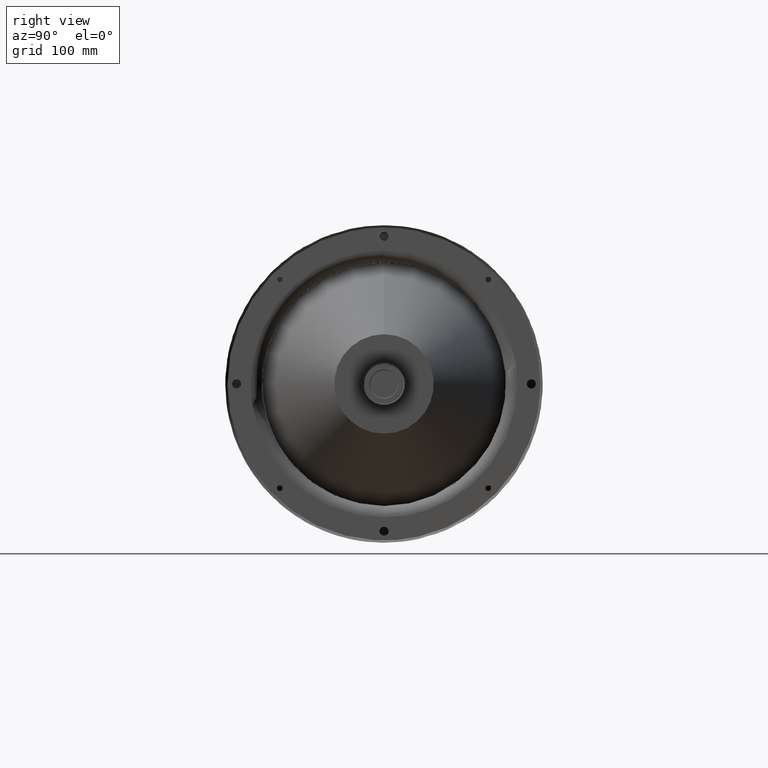
[diagram: clean part render]
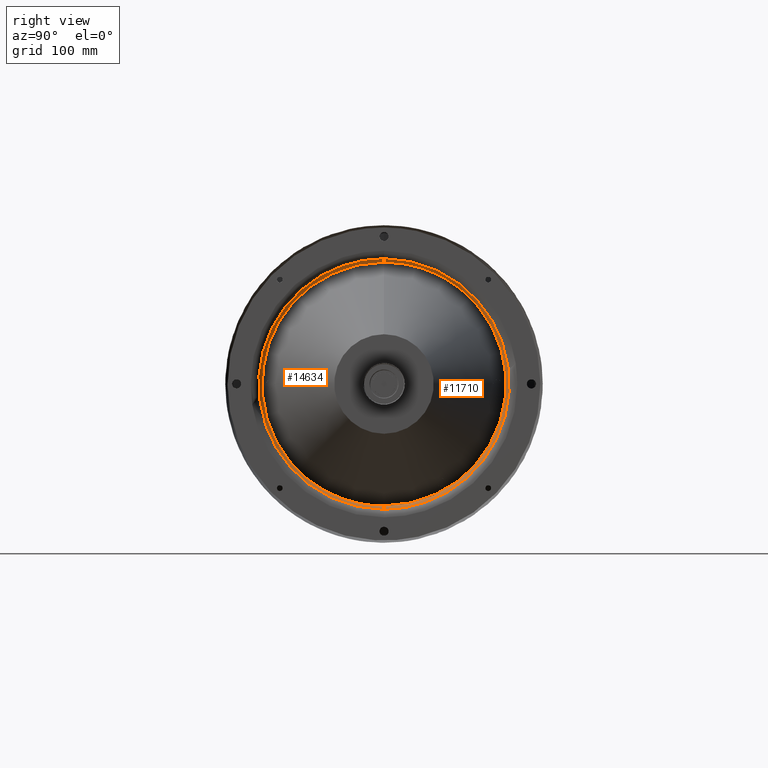
[diagram: same view with one multi-face feature highlighted, each face labeled with its STEP entity id]
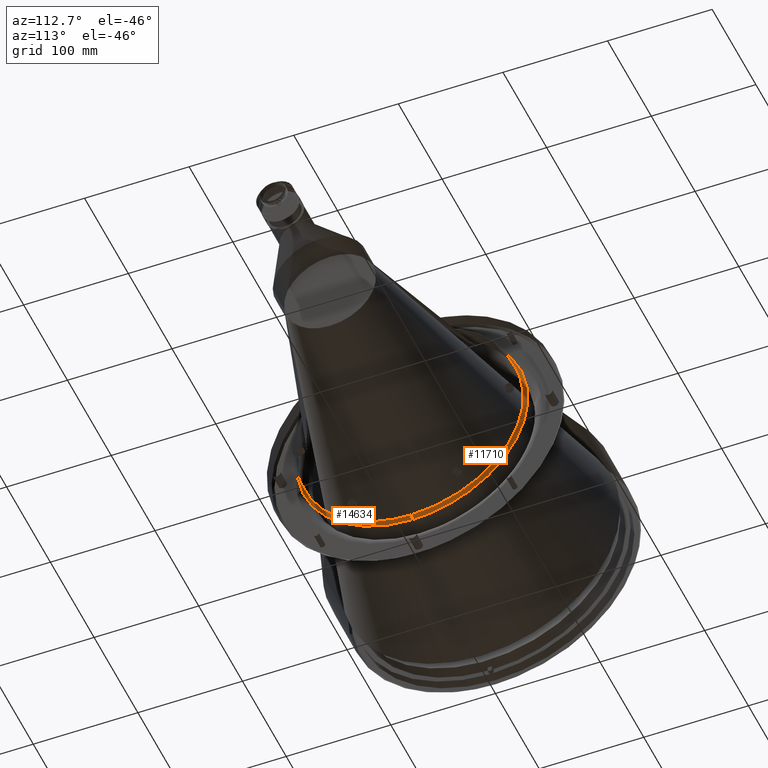
[diagram: same view with one multi-face feature highlighted, each face labeled with its STEP entity id]
A machine part, right view. The highlighted faces form ONE feature: a constant-radius fillet chain: 2 tangent blend faces with common blend radius 3 mm. The faces share edges in the B-rep.
A second angle (auxiliary view) of the same feature is appended — it is thin or edge-on in the first view.
Their STEP definitions:
[1] entity #11710 (Torus):
#790 = CARTESIAN_POINT ( 'NONE',  ( 193.0000000002060005, -1.964130387255570030E-09, 107.5000000000199947 ) ) ;
#1292 = CARTESIAN_POINT ( 'NONE',  ( 193.0000000000408988, 104.0617897341287090, -27.87287611392599729 ) ) ;
#1416 = DIRECTION ( 'NONE',  ( 1.000000000000000000, -1.364223439299359951E-12, -2.161051562863539981E-13 ) ) ;
#2033 = TOROIDAL_SURFACE ( 'NONE', #37690, 110.4999999998850058, 2.999999999825670116 ) ;
#2180 = FACE_OUTER_BOUND ( 'NONE', #15940, .T. ) ;
#2299 = CARTESIAN_POINT ( 'NONE',  ( 190.0000000002042384, 99.32104212800834375, -48.96820830360432808 ) ) ;
#2542 = DIRECTION ( 'NONE',  ( 1.000000000000000000, -1.364223439299361970E-12, 0.000000000000000000 ) ) ;
#2549 = CARTESIAN_POINT ( 'NONE',  ( 190.0000000000753175, 14.46423734553270357, -109.7877072893656702 ) ) ;
#2756 = ORIENTED_EDGE ( 'NONE', *, *, #13917, .F. ) ;
#3381 = CARTESIAN_POINT ( 'NONE',  ( 192.9999999999011209, 14.07154311893987675, -106.8070455530409788 ) ) ;
#3394 = VERTEX_POINT ( 'NONE', #27545 ) ;
#4444 = VERTEX_POINT ( 'NONE', #33851 ) ;
#4681 = CARTESIAN_POINT ( 'NONE',  ( 193.0000000000516707, 102.0095562431598353, 34.63818327513412498 ) ) ;
#4933 = CARTESIAN_POINT ( 'NONE',  ( 193.0000000000001137, 80.98908226821060907, -71.03887568706910827 ) ) ;
#5190 = CARTESIAN_POINT ( 'NONE',  ( 192.9999999999473062, 14.07154311684571368, 106.8070455532581917 ) ) ;
#5446 = CARTESIAN_POINT ( 'NONE',  ( 192.9999999999759837, 65.57390262847629003, -85.47406974982817474 ) ) ;
#5587 = EDGE_CURVE ( 'NONE', #4444, #3394, #28257, .T. ) ;
#6172 = VERTEX_POINT ( 'NONE', #41250 ) ;
#6209 = CARTESIAN_POINT ( 'NONE',  ( 190.0000000002260094, 109.7877072894778792, -14.46423734522748461 ) ) ;
#6459 = CARTESIAN_POINT ( 'NONE',  ( 190.0000000001846558, 87.85939262696450669, -67.40387200360369491 ) ) ;
#6711 = CARTESIAN_POINT ( 'NONE',  ( 190.0000000001505782, 35.60483024903621185, 104.8563345572075889 ) ) ;
#7288 = CARTESIAN_POINT ( 'NONE',  ( 192.9999999998914575, 7.035858547257477724, -107.5000000000887042 ) ) ;
#9851 = CARTESIAN_POINT ( 'NONE',  ( 190.0000000002190177, 106.9658396799592595, -28.65072382018607300 ) ) ;
#10349 = CARTESIAN_POINT ( 'NONE',  ( 190.0000000001227818, 14.46423734531042093, 109.7877072893375470 ) ) ;
#11710 = ADVANCED_FACE ( 'NONE', ( #2180 ), #2033, .T. ) ;
#12689 = CARTESIAN_POINT ( 'NONE',  ( 190.0000000000516138, -2.882480042511756240E-13, 110.5000000000000000 ) ) ;
#12951 = CARTESIAN_POINT ( 'NONE',  ( 192.9999999999654392, 27.87287611298400236, 104.0617897342650338 ) ) ;
#13917 = EDGE_CURVE ( 'NONE', #4444, #27540, #32089, .T. ) ;
#13967 = CARTESIAN_POINT ( 'NONE',  ( 190.0000000002221441, 95.89539169218123504, 55.37714949376840678 ) ) ;
#14212 = DIRECTION ( 'NONE',  ( -1.364223439299359951E-12, -1.000000000000000000, 2.948157195592955509E-25 ) ) ;
#14218 = CARTESIAN_POINT ( 'NONE',  ( 190.0000000002137881, 87.85939262682802564, 67.40387200372416032 ) ) ;
#15940 = EDGE_LOOP ( 'NONE', ( #40065, #50647, #34925, #2756 ) ) ;
#16329 = CARTESIAN_POINT ( 'NONE',  ( 192.9999999999491536, 47.63875468497065668, -96.62454324647218584 ) ) ;
#16588 = CARTESIAN_POINT ( 'NONE',  ( 192.9999999999583622, 53.87369747167641520, -93.29189689493730953 ) ) ;
#17615 = CARTESIAN_POINT ( 'NONE',  ( 190.0000000002146976, 104.8563345573479211, -35.60483024895327020 ) ) ;
#18111 = CARTESIAN_POINT ( 'NONE',  ( 190.0000000002285105, 110.5000000001476650, -7.232208087870259483 ) ) ;
#18362 = CARTESIAN_POINT ( 'NONE',  ( 190.0000000001130616, 7.232208087953195808, 110.5000000000072902 ) ) ;
#18615 = CARTESIAN_POINT ( 'NONE',  ( 190.0000000001341505, 55.37714949390879582, -95.89539169209825786 ) ) ;
#20488 = CARTESIAN_POINT ( 'NONE',  ( 193.0000000000206057, 93.29189689554362985, -53.87369747068364489 ) ) ;
#20998 = CARTESIAN_POINT ( 'NONE',  ( 192.9999999999908482, 47.63875468307613659, 96.62454324734748923 ) ) ;
#21259 = CARTESIAN_POINT ( 'NONE',  ( 192.9999999999742784, 34.63818327227091487, 102.0095562440416330 ) ) ;
#21513 = CARTESIAN_POINT ( 'NONE',  ( 190.0000000001902549, 67.40387200368664367, 87.85939262682414608 ) ) ;
#22017 = CARTESIAN_POINT ( 'NONE',  ( 190.0000000001982130, 95.89539169229333027, -55.37714949363171968 ) ) ;
#22264 = CARTESIAN_POINT ( 'NONE',  ( 190.0000000001246860, 48.96820830388833201, -99.32104212782628849 ) ) ;
#22513 = CARTESIAN_POINT ( 'NONE',  ( 190.0000000001675744, 48.96820830368723421, 99.32104212786798314 ) ) ;
#22986 = CARTESIAN_POINT ( 'NONE',  ( 190.0000000000277396, 2.252650009324170087E-10, -110.5000000000287201 ) ) ;
#23340 = CARTESIAN_POINT ( 'NONE',  ( 192.9999999999205329, 27.87287611502434359, -104.0617897337772746 ) ) ;
#24118 = CARTESIAN_POINT ( 'NONE',  ( 193.0000000000476916, 106.8070455532571259, -14.07154311781462930 ) ) ;
#24890 = CARTESIAN_POINT ( 'NONE',  ( 193.0000000000308091, 80.98908226681778899, 71.03887568859835255 ) ) ;
#25141 = CARTESIAN_POINT ( 'NONE',  ( 193.0000000000538023, 106.8070455529812364, 14.07154311985005535 ) ) ;
#25660 = CARTESIAN_POINT ( 'NONE',  ( 190.0000000001770957, 83.24924270326341968, -73.02135593913419598 ) ) ;
#25919 = CARTESIAN_POINT ( 'NONE',  ( 190.0000000001415117, 28.65072382026899689, 106.9658396798189273 ) ) ;
#26173 = CARTESIAN_POINT ( 'NONE',  ( 190.0000000001052172, 35.60483024924849360, -104.8563345571929375 ) ) ;
#26427 = CARTESIAN_POINT ( 'NONE',  ( 190.0000000002316654, 110.5000000001330136, 7.232208088036498950 ) ) ;
#27043 = AXIS2_PLACEMENT_3D ( 'NONE', #44114, #31907, #47478 ) ;
#27540 = VERTEX_POINT ( 'NONE', #22986 ) ;
#27545 = CARTESIAN_POINT ( 'NONE',  ( 193.0000000002060005, -1.964130387255570030E-09, 107.5000000000199947 ) ) ;
#28074 = B_SPLINE_CURVE_WITH_KNOTS ( 'NONE', 3,
 ( #12689, #18362, #10349, #25919, #6711, #22513, #30073, #21513, #33737, #50068, #14218, #13967, #45918, #29825, #38374, #42016, #26427, #18111, #6209, #9851, #17615, #2299, #22017, #6459, #25660, #38122, #34482, #18615, #22264, #26173, #42274, #2549, #33987, #45673 ),
 .UNSPECIFIED., .F., .F.,
 ( 4, 2, 2, 2, 2, 2, 2, 2, 2, 2, 2, 2, 2, 2, 2, 2, 4 ),
 ( 0.000000000000000000, 0.03125000000000000000, 0.06250000000000000000, 0.09375000000000000000, 0.1250000000000000000, 0.1562500000000000000, 0.1875000000000000000, 0.2187500000000000000, 0.2500000000000000000, 0.2812500000000000000, 0.3125000000000000000, 0.3437500000000000000, 0.3750000000000000000, 0.4062500000000000000, 0.4375000000000000000, 0.4687500000000000000, 0.5000000000000000000 ),
 .UNSPECIFIED. ) ;
#28257 = B_SPLINE_CURVE_WITH_KNOTS ( 'NONE', 3,
 ( #42853, #7288, #3381, #23340, #39208, #16329, #16588, #5446, #41001, #4933, #44144, #20488, #36347, #44911, #1292, #24118, #39977, #48018, #25141, #36599, #4681, #48274, #29056, #32194, #24890, #48532, #28552, #40740, #20998, #21259, #12951, #5190, #37112, #790 ),
 .UNSPECIFIED., .F., .F.,
 ( 4, 2, 2, 2, 2, 2, 2, 2, 2, 2, 2, 2, 2, 2, 2, 2, 4 ),
 ( 0.000000000000000000, 0.06249999999999994449, 0.1249999999999998890, 0.1874999999999998335, 0.2499999999999998335, 0.3124999999999998335, 0.3749999999999998335, 0.4374999999999998335, 0.4999999999999997780, 0.5624999999999997780, 0.6249999999999998890, 0.6874999999999998890, 0.7500000000000000000, 0.8125000000000000000, 0.8750000000000000000, 0.9374999999999998890, 1.000000000000000000 ),
 .UNSPECIFIED. ) ;
#28552 = CARTESIAN_POINT ( 'NONE',  ( 193.0000000000129319, 65.57390262680041815, 85.47406975105515414 ) ) ;
#29056 = CARTESIAN_POINT ( 'NONE',  ( 193.0000000000439400, 93.29189689448735123, 53.87369747245407581 ) ) ;
#29825 = CARTESIAN_POINT ( 'NONE',  ( 190.0000000002301022, 104.8563345572758720, 35.60483024910809746 ) ) ;
#30073 = CARTESIAN_POINT ( 'NONE',  ( 190.0000000001755893, 55.37714949371464002, 95.89539169215296965 ) ) ;
#31907 = DIRECTION ( 'NONE',  ( 1.364223439299359951E-12, 1.000000000000000000, -1.224646802095510313E-16 ) ) ;
#32089 = CIRCLE ( 'NONE', #42869, 2.999999999825670116 ) ;
#32194 = CARTESIAN_POINT ( 'NONE',  ( 193.0000000000357545, 85.47406974926353485, 65.57390262917732571 ) ) ;
#32860 = EDGE_CURVE ( 'NONE', #6172, #27540, #28074, .T. ) ;
#33088 = DIRECTION ( 'NONE',  ( -2.161051562863539981E-13, -9.607986225502637132E-29, -1.000000000000000000 ) ) ;
#33737 = CARTESIAN_POINT ( 'NONE',  ( 190.0000000001969340, 73.02135593921715895, 83.24924270312304486 ) ) ;
#33851 = CARTESIAN_POINT ( 'NONE',  ( 193.0000000003415153, 2.702453454497094965E-09, -107.5000000001133884 ) ) ;
#33987 = CARTESIAN_POINT ( 'NONE',  ( 190.0000000000653984, 7.232208088176899530, -110.5000000000501217 ) ) ;
#34482 = CARTESIAN_POINT ( 'NONE',  ( 190.0000000001522835, 67.40387200386452093, -87.85939262674506267 ) ) ;
#34925 = ORIENTED_EDGE ( 'NONE', *, *, #32860, .T. ) ;
#36347 = CARTESIAN_POINT ( 'NONE',  ( 193.0000000000265175, 96.62454324701738528, -47.63875468394521562 ) ) ;
#36599 = CARTESIAN_POINT ( 'NONE',  ( 193.0000000000529781, 104.0617897335822164, 27.87287611590761927 ) ) ;
#37112 = CARTESIAN_POINT ( 'NONE',  ( 192.9999999999378986, 7.035858545149753951, 107.5000000001679439 ) ) ;
#37362 = CARTESIAN_POINT ( 'NONE',  ( 192.9999999998811404, 1.075406430572910080E-10, -110.4999999999143654 ) ) ;
#37690 = AXIS2_PLACEMENT_3D ( 'NONE', #41125, #1416, #33088 ) ;
#38122 = CARTESIAN_POINT ( 'NONE',  ( 190.0000000001609237, 73.02135593938568547, -83.24924270303259277 ) ) ;
#38374 = CARTESIAN_POINT ( 'NONE',  ( 190.0000000002314948, 106.9658396799012792, 28.65072382034520615 ) ) ;
#39208 = CARTESIAN_POINT ( 'NONE',  ( 192.9999999999302247, 34.63818327427099319, -102.0095562434212155 ) ) ;
#39977 = CARTESIAN_POINT ( 'NONE',  ( 193.0000000000501643, 107.5000000002358718, -7.035858546125418833 ) ) ;
#40065 = ORIENTED_EDGE ( 'NONE', *, *, #5587, .T. ) ;
#40652 = EDGE_CURVE ( 'NONE', #3394, #6172, #49443, .T. ) ;
#40740 = CARTESIAN_POINT ( 'NONE',  ( 192.9999999999986358, 53.87369746984726504, 93.29189689593491153 ) ) ;
#41001 = CARTESIAN_POINT ( 'NONE',  ( 192.9999999999843965, 71.03887568794128526, -80.98908226743603223 ) ) ;
#41125 = CARTESIAN_POINT ( 'NONE',  ( 192.9999999999049862, 1.075406430572910080E-10, -2.935804377379720360E-11 ) ) ;
#41250 = CARTESIAN_POINT ( 'NONE',  ( 190.0000000000516138, -2.882480042511756240E-13, 110.5000000000000000 ) ) ;
#42016 = CARTESIAN_POINT ( 'NONE',  ( 190.0000000002322338, 109.7877072894485906, 14.46423734539233230 ) ) ;
#42274 = CARTESIAN_POINT ( 'NONE',  ( 190.0000000000953548, 28.65072382048558453, -106.9658396798183588 ) ) ;
#42853 = CARTESIAN_POINT ( 'NONE',  ( 193.0000000003415153, 2.702453454497094965E-09, -107.5000000001133884 ) ) ;
#42869 = AXIS2_PLACEMENT_3D ( 'NONE', #37362, #14212, #2542 ) ;
#44114 = CARTESIAN_POINT ( 'NONE',  ( 192.9999999999288605, 1.075541754044215835E-10, 110.4999999998556603 ) ) ;
#44144 = CARTESIAN_POINT ( 'NONE',  ( 193.0000000000074181, 85.47406975054921929, -65.57390262756014465 ) ) ;
#44911 = CARTESIAN_POINT ( 'NONE',  ( 193.0000000000366640, 102.0095562438389436, -34.63818327319276591 ) ) ;
#45673 = CARTESIAN_POINT ( 'NONE',  ( 190.0000000000277396, 2.252650009324170087E-10, -110.5000000000287201 ) ) ;
#45918 = CARTESIAN_POINT ( 'NONE',  ( 190.0000000002254126, 99.32104212790923725, 48.96820830374793587 ) ) ;
#47478 = DIRECTION ( 'NONE',  ( -1.000000000000000000, 1.364223439299361970E-12, 0.000000000000000000 ) ) ;
#48018 = CARTESIAN_POINT ( 'NONE',  ( 193.0000000000531486, 107.5000000000979128, 7.035858548174445559 ) ) ;
#48274 = CARTESIAN_POINT ( 'NONE',  ( 193.0000000000470948, 96.62454324608332001, 47.63875468578098804 ) ) ;
#48532 = CARTESIAN_POINT ( 'NONE',  ( 193.0000000000194120, 71.03887568635337857, 80.98908226877014727 ) ) ;
#49443 = CIRCLE ( 'NONE', #27043, 2.999999999825670116 ) ;
#50068 = CARTESIAN_POINT ( 'NONE',  ( 190.0000000002086722, 83.24924270311558416, 73.02135593924531065 ) ) ;
#50647 = ORIENTED_EDGE ( 'NONE', *, *, #40652, .T. ) ;
[2] entity #14634 (Torus):
#71 = CARTESIAN_POINT ( 'NONE',  ( 192.9999999997905320, -71.03887568699406074, -80.98908226807060373 ) ) ;
#583 = CARTESIAN_POINT ( 'NONE',  ( 192.9999999997627924, -96.62454324613523227, -47.63875468528519974 ) ) ;
#2494 = CARTESIAN_POINT ( 'NONE',  ( 190.0000000000339639, -48.96820830366510791, 99.32104212776881980 ) ) ;
#2542 = DIRECTION ( 'NONE',  ( 1.000000000000000000, -1.364223439299361970E-12, 0.000000000000000000 ) ) ;
#3394 = VERTEX_POINT ( 'NONE', #27545 ) ;
#3691 = CARTESIAN_POINT ( 'NONE',  ( 192.9999999997834266, -96.62454324706946807, 47.63875468333152696 ) ) ;
#4444 = VERTEX_POINT ( 'NONE', #33851 ) ;
#4470 = CARTESIAN_POINT ( 'NONE',  ( 192.9999999998025260, -85.47406975086512659, 65.57390262679987813 ) ) ;
#5904 = CARTESIAN_POINT ( 'NONE',  ( 190.0000000000633804, -28.65072382026234976, 106.9658396797609186 ) ) ;
#6156 = CARTESIAN_POINT ( 'NONE',  ( 190.0000000000171383, -28.65072382004570883, -106.9658396798763675 ) ) ;
#6172 = VERTEX_POINT ( 'NONE', #41250 ) ;
#6904 = CARTESIAN_POINT ( 'NONE',  ( 190.0000000000245564, -55.37714949368555750, 95.89539169204081759 ) ) ;
#7205 = AXIS2_PLACEMENT_3D ( 'NONE', #39277, #35400, #51211 ) ;
#8072 = ORIENTED_EDGE ( 'NONE', *, *, #29746, .T. ) ;
#8369 = CARTESIAN_POINT ( 'NONE',  ( 192.9999999997583870, -102.0095562430808087, -34.63818327477422088 ) ) ;
#9794 = CARTESIAN_POINT ( 'NONE',  ( 189.9999999999263878, -109.7877072892253096, -14.46423734544980633 ) ) ;
#10293 = CARTESIAN_POINT ( 'NONE',  ( 189.9999999999604938, -95.89539169207010616, 55.37714949357423677 ) ) ;
#10542 = CARTESIAN_POINT ( 'NONE',  ( 189.9999999999815259, -83.24924270304020979, 73.02135593907669886 ) ) ;
#10618 = B_SPLINE_CURVE_WITH_KNOTS ( 'NONE', 3,
 ( #27565, #31219, #11485, #51191, #23138, #19259, #47055, #11735, #43412, #47307, #4470, #35123, #3691, #20025, #50939, #15611, #48069, #39007, #12493, #15863, #8369, #583, #23649, #31477, #39510, #71, #16376, #47559, #11983, #27820, #24169, #43670, #23903, #39769 ),
 .UNSPECIFIED., .F., .F.,
 ( 4, 2, 2, 2, 2, 2, 2, 2, 2, 2, 2, 2, 2, 2, 2, 2, 4 ),
 ( 0.000000000000000000, 0.06250000000000001388, 0.1250000000000000000, 0.1874999999999999722, 0.2499999999999999722, 0.3124999999999999445, 0.3749999999999999445, 0.4375000000000000000, 0.5000000000000000000, 0.5625000000000000000, 0.6250000000000000000, 0.6875000000000000000, 0.7500000000000000000, 0.8125000000000001110, 0.8750000000000001110, 0.9375000000000001110, 1.000000000000000000 ),
 .UNSPECIFIED. ) ;
#10708 = EDGE_CURVE ( 'NONE', #3394, #4444, #10618, .T. ) ;
#10795 = CARTESIAN_POINT ( 'NONE',  ( 190.0000000000934222, -7.232208087953710951, 110.4999999999927383 ) ) ;
#10974 = EDGE_LOOP ( 'NONE', ( #45275, #44175, #41626, #8072 ) ) ;
#11485 = CARTESIAN_POINT ( 'NONE',  ( 192.9999999999089084, -14.07154312064334789, 106.8070455527237357 ) ) ;
#11735 = CARTESIAN_POINT ( 'NONE',  ( 192.9999999998339888, -65.57390262923568969, 85.47406974901466015 ) ) ;
#11983 = CARTESIAN_POINT ( 'NONE',  ( 192.9999999998191527, -47.63875468420047099, -96.62454324673942097 ) ) ;
#12493 = CARTESIAN_POINT ( 'NONE',  ( 192.9999999997562270, -106.8070455527834923, -14.07154311973341443 ) ) ;
#13913 = CARTESIAN_POINT ( 'NONE',  ( 189.9999999999617160, -73.02135593899383537, -83.24924270318048514 ) ) ;
#13917 = EDGE_CURVE ( 'NONE', #4444, #27540, #32089, .T. ) ;
#14162 = CARTESIAN_POINT ( 'NONE',  ( 189.9999999999911608, -48.96820830346394615, -99.32104212792548026 ) ) ;
#14212 = DIRECTION ( 'NONE',  ( -1.364223439299359951E-12, -1.000000000000000000, 2.948157195592955509E-25 ) ) ;
#14634 = ADVANCED_FACE ( 'NONE', ( #47076 ), #27101, .T. ) ;
#15611 = CARTESIAN_POINT ( 'NONE',  ( 192.9999999997623945, -106.8070455530594671, 14.07154311758005427 ) ) ;
#15863 = CARTESIAN_POINT ( 'NONE',  ( 192.9999999997569944, -104.0617897334524855, -27.87287611562544498 ) ) ;
#16376 = CARTESIAN_POINT ( 'NONE',  ( 192.9999999997971258, -65.57390262755946253, -85.47406975035934806 ) ) ;
#18553 = CARTESIAN_POINT ( 'NONE',  ( 190.0000000000081002, -35.60483024881288827, -104.8563345572650150 ) ) ;
#19259 = CARTESIAN_POINT ( 'NONE',  ( 192.9999999998608473, -47.63875468609533215, 96.62454324574650855 ) ) ;
#20025 = CARTESIAN_POINT ( 'NONE',  ( 192.9999999997733369, -102.0095562437601302, 34.63818327271494013 ) ) ;
#21709 = CARTESIAN_POINT ( 'NONE',  ( 190.0000000000516138, -2.882480042511756240E-13, 110.5000000000000000 ) ) ;
#22452 = CARTESIAN_POINT ( 'NONE',  ( 190.0000000000358966, -14.46423734508711156, -109.7877072893949446 ) ) ;
#22703 = CARTESIAN_POINT ( 'NONE',  ( 189.9999999999830891, -55.37714949349133775, -95.89539169221042414 ) ) ;
#22986 = CARTESIAN_POINT ( 'NONE',  ( 190.0000000000277396, 2.252650009324170087E-10, -110.5000000000287201 ) ) ;
#23138 = CARTESIAN_POINT ( 'NONE',  ( 192.9999999998797762, -34.63818327563712529, 102.0095562428195279 ) ) ;
#23649 = CARTESIAN_POINT ( 'NONE',  ( 192.9999999997660609, -93.29189689461944113, -53.87369747190014380 ) ) ;
#23903 = CARTESIAN_POINT ( 'NONE',  ( 192.9999999998721023, -7.035858546954115944, -107.5000000000886899 ) ) ;
#24169 = CARTESIAN_POINT ( 'NONE',  ( 192.9999999998445332, -27.87287611446775060, -104.0617897338627813 ) ) ;
#25862 = CARTESIAN_POINT ( 'NONE',  ( 189.9999999999270415, -110.4999999999097611, -7.232208088094029819 ) ) ;
#26121 = CARTESIAN_POINT ( 'NONE',  ( 190.0000000000063380, -67.40387200364129683, 87.85939262668762240 ) ) ;
#26373 = CARTESIAN_POINT ( 'NONE',  ( 189.9999999999976410, -73.02135593916248979, 83.24924270297516671 ) ) ;
#27043 = AXIS2_PLACEMENT_3D ( 'NONE', #44114, #31907, #47478 ) ;
#27101 = TOROIDAL_SURFACE ( 'NONE', #7205, 110.4999999998850058, 2.999999999825670116 ) ;
#27540 = VERTEX_POINT ( 'NONE', #22986 ) ;
#27545 = CARTESIAN_POINT ( 'NONE',  ( 193.0000000002060005, -1.964130387255570030E-09, 107.5000000000199947 ) ) ;
#27565 = CARTESIAN_POINT ( 'NONE',  ( 193.0000000002060005, -1.964130387255570030E-09, 107.5000000000199947 ) ) ;
#27820 = CARTESIAN_POINT ( 'NONE',  ( 192.9999999998357225, -34.63818327363666327, -102.0095562435574834 ) ) ;
#29513 = CARTESIAN_POINT ( 'NONE',  ( 189.9999999999332374, -99.32104212768589946, -48.96820830380546141 ) ) ;
#29746 = EDGE_CURVE ( 'NONE', #27540, #6172, #35825, .T. ) ;
#29768 = CARTESIAN_POINT ( 'NONE',  ( 189.9999999999683382, -67.40387200346333429, -87.85939262688158635 ) ) ;
#30015 = CARTESIAN_POINT ( 'NONE',  ( 189.9999999999396039, -106.9658396797360780, 28.65072382012859720 ) ) ;
#30521 = CARTESIAN_POINT ( 'NONE',  ( 189.9999999999740794, -87.85939262674122574, 67.40387200354622621 ) ) ;
#31219 = CARTESIAN_POINT ( 'NONE',  ( 192.9999999999186286, -7.035858549062316669, 107.4999999998920401 ) ) ;
#31477 = CARTESIAN_POINT ( 'NONE',  ( 192.9999999997742464, -85.47406974957917214, -65.57390262853478191 ) ) ;
#31907 = DIRECTION ( 'NONE',  ( 1.364223439299359951E-12, 1.000000000000000000, -1.224646802095510313E-16 ) ) ;
#32089 = CIRCLE ( 'NONE', #42869, 2.999999999825670116 ) ;
#33420 = CARTESIAN_POINT ( 'NONE',  ( 190.0000000000277396, 2.252650009324170087E-10, -110.5000000000287201 ) ) ;
#33684 = CARTESIAN_POINT ( 'NONE',  ( 189.9999999999499778, -83.24924270289227479, -73.02135593930276514 ) ) ;
#33851 = CARTESIAN_POINT ( 'NONE',  ( 193.0000000003415153, 2.702453454497094965E-09, -107.5000000001133884 ) ) ;
#34178 = CARTESIAN_POINT ( 'NONE',  ( 189.9999999999449471, -87.85939262660473048, -67.40387200378160060 ) ) ;
#35123 = CARTESIAN_POINT ( 'NONE',  ( 192.9999999997893383, -93.29189689567591870, 53.87369747001191911 ) ) ;
#35400 = DIRECTION ( 'NONE',  ( 1.000000000000000000, -1.364223439299359951E-12, -2.161051562863539981E-13 ) ) ;
#35825 = B_SPLINE_CURVE_WITH_KNOTS ( 'NONE', 3,
 ( #33420, #37821, #22452, #6156, #18553, #14162, #22703, #29768, #13913, #33684, #34178, #49499, #29513, #45620, #42212, #9794, #25862, #49761, #37570, #30015, #41462, #45867, #10293, #30521, #10542, #26373, #26121, #6904, #2494, #46365, #5904, #41963, #10795, #21709 ),
 .UNSPECIFIED., .F., .F.,
 ( 4, 2, 2, 2, 2, 2, 2, 2, 2, 2, 2, 2, 2, 2, 2, 2, 4 ),
 ( 0.5000000000000000000, 0.5312500000000000000, 0.5625000000000000000, 0.5937500000000000000, 0.6250000000000000000, 0.6562500000000000000, 0.6875000000000000000, 0.7187500000000000000, 0.7500000000000000000, 0.7812500000000000000, 0.8125000000000000000, 0.8437500000000000000, 0.8750000000000001110, 0.9062500000000001110, 0.9375000000000001110, 0.9687500000000001110, 1.000000000000000000 ),
 .UNSPECIFIED. ) ;
#37362 = CARTESIAN_POINT ( 'NONE',  ( 192.9999999998811404, 1.075406430572910080E-10, -110.4999999999143654 ) ) ;
#37570 = CARTESIAN_POINT ( 'NONE',  ( 189.9999999999326690, -109.7877072892546124, 14.46423734517000703 ) ) ;
#37821 = CARTESIAN_POINT ( 'NONE',  ( 190.0000000000456453, -7.232208087729866008, -110.5000000000647447 ) ) ;
#39007 = CARTESIAN_POINT ( 'NONE',  ( 192.9999999997568239, -107.4999999998827889, -7.035858548145551339 ) ) ;
#39277 = CARTESIAN_POINT ( 'NONE',  ( 192.9999999999049862, 1.075406430572910080E-10, -2.935804377379720360E-11 ) ) ;
#39510 = CARTESIAN_POINT ( 'NONE',  ( 192.9999999997792202, -80.98908226723679604, -71.03887568792549700 ) ) ;
#39769 = CARTESIAN_POINT ( 'NONE',  ( 193.0000000003415153, 2.702453454497094965E-09, -107.5000000001133884 ) ) ;
#40652 = EDGE_CURVE ( 'NONE', #3394, #6172, #49443, .T. ) ;
#41250 = CARTESIAN_POINT ( 'NONE',  ( 190.0000000000516138, -2.882480042511756240E-13, 110.5000000000000000 ) ) ;
#41462 = CARTESIAN_POINT ( 'NONE',  ( 189.9999999999439524, -104.8563345571246970, 35.60483024889575177 ) ) ;
#41626 = ORIENTED_EDGE ( 'NONE', *, *, #13917, .T. ) ;
#41963 = CARTESIAN_POINT ( 'NONE',  ( 190.0000000000833609, -14.46423734530946881, 109.7877072893082584 ) ) ;
#42212 = CARTESIAN_POINT ( 'NONE',  ( 189.9999999999272688, -106.9658396796780124, -28.65072382040268906 ) ) ;
#42869 = AXIS2_PLACEMENT_3D ( 'NONE', #37362, #14212, #2542 ) ;
#43412 = CARTESIAN_POINT ( 'NONE',  ( 192.9999999998255760, -71.03887568858239376, 80.98908226661873755 ) ) ;
#43670 = CARTESIAN_POINT ( 'NONE',  ( 192.9999999998626947, -14.07154311854880469, -106.8070455530583871 ) ) ;
#44114 = CARTESIAN_POINT ( 'NONE',  ( 192.9999999999288605, 1.075541754044215835E-10, 110.4999999998556603 ) ) ;
#44175 = ORIENTED_EDGE ( 'NONE', *, *, #10708, .T. ) ;
#45275 = ORIENTED_EDGE ( 'NONE', *, *, #40652, .F. ) ;
#45620 = CARTESIAN_POINT ( 'NONE',  ( 189.9999999999286331, -104.8563345570525769, -35.60483024916563011 ) ) ;
#45867 = CARTESIAN_POINT ( 'NONE',  ( 189.9999999999544116, -99.32104212778517649, 48.96820830354680254 ) ) ;
#46365 = CARTESIAN_POINT ( 'NONE',  ( 190.0000000000533760, -35.60483024902529081, 104.8563345571355399 ) ) ;
#47055 = CARTESIAN_POINT ( 'NONE',  ( 192.9999999998516103, -53.87369747267764097, 93.29189689416956810 ) ) ;
#47076 = FACE_OUTER_BOUND ( 'NONE', #10974, .T. ) ;
#47307 = CARTESIAN_POINT ( 'NONE',  ( 192.9999999998098588, -80.98908226862994297, 71.03887568627843052 ) ) ;
#47478 = DIRECTION ( 'NONE',  ( -1.000000000000000000, 1.364223439299361970E-12, 0.000000000000000000 ) ) ;
#47559 = CARTESIAN_POINT ( 'NONE',  ( 192.9999999998113651, -53.87369747084807869, -93.29189689528483598 ) ) ;
#48069 = CARTESIAN_POINT ( 'NONE',  ( 192.9999999997598366, -107.5000000000207905, 7.035858545978695311 ) ) ;
#49443 = CIRCLE ( 'NONE', #27043, 2.999999999825670116 ) ;
#49499 = CARTESIAN_POINT ( 'NONE',  ( 189.9999999999365059, -95.89539169195791146, -55.37714949382586127 ) ) ;
#49761 = CARTESIAN_POINT ( 'NONE',  ( 189.9999999999301679, -110.4999999999244267, 7.232208087812730390 ) ) ;
#50939 = CARTESIAN_POINT ( 'NONE',  ( 192.9999999997690736, -104.0617897339991202, 27.87287611352591910 ) ) ;
#51191 = CARTESIAN_POINT ( 'NONE',  ( 192.9999999998894680, -27.87287611650845776, 104.0617897332575126 ) ) ;
#51211 = DIRECTION ( 'NONE',  ( -2.161051562863539981E-13, -9.607986225502637132E-29, -1.000000000000000000 ) ) ;